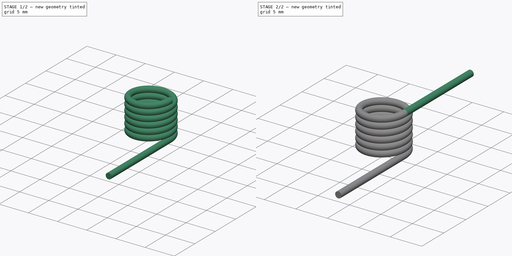
[diagram: build sequence overview — one tinted view per stage of 2, left to right]
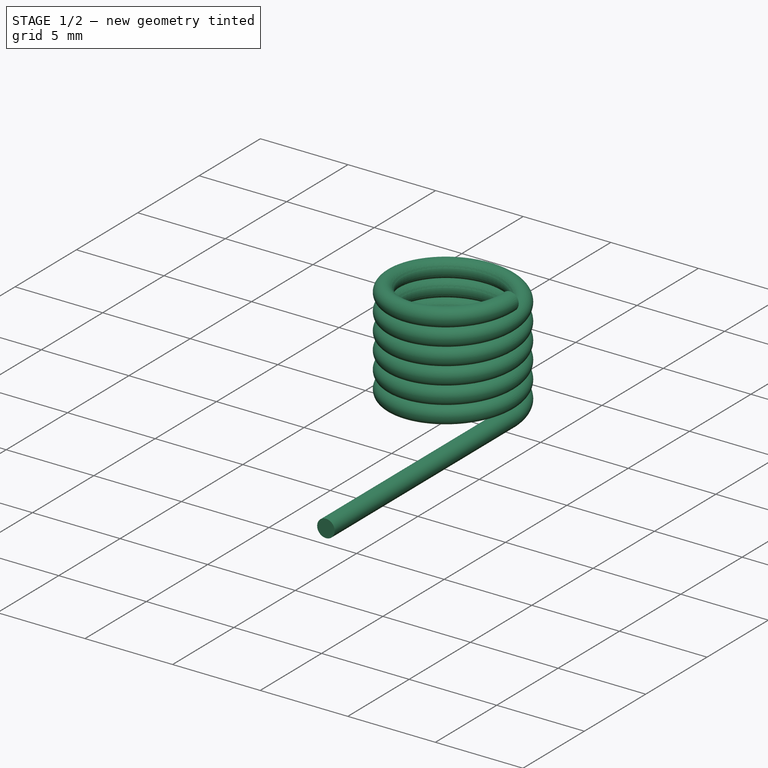
[diagram: stage 1 of 2 — iso view after this stage's code; geometry added in this stage tinted green]
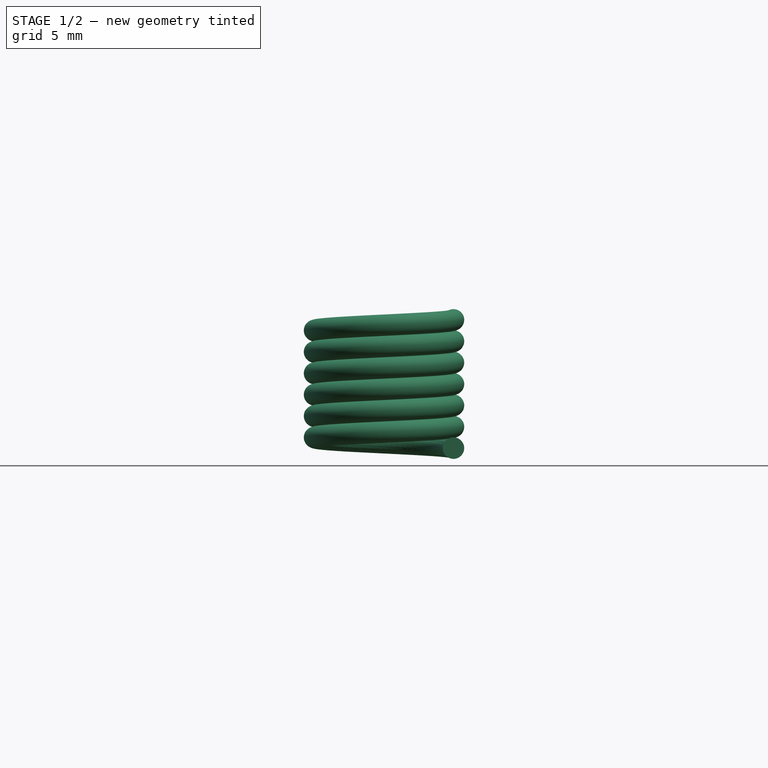
[diagram: stage 1 of 2 — front view after this stage's code; geometry added in this stage tinted green]
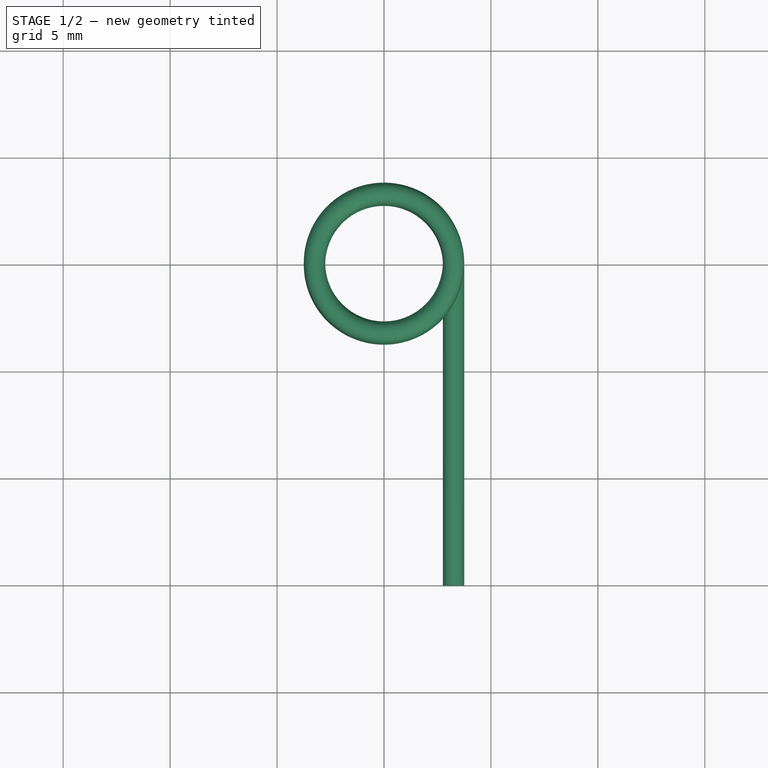
[diagram: stage 1 of 2 — top view after this stage's code; geometry added in this stage tinted green]
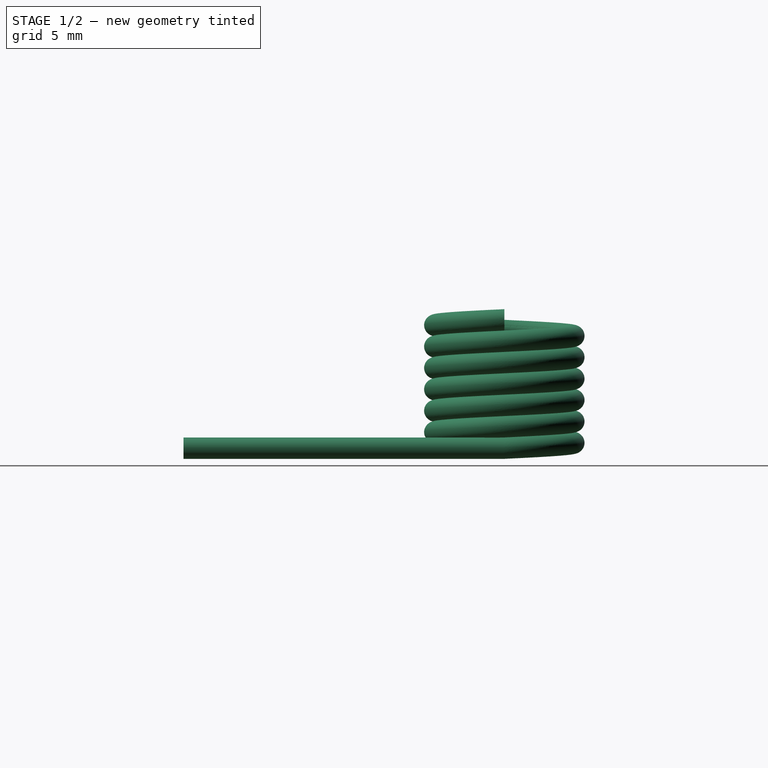
[diagram: stage 1 of 2 — right view after this stage's code; geometry added in this stage tinted green]
FCSTD DOCUMENT  (FreeCAD 0.18R14555 (Git shallow))
Label: spring
License: All rights reserved
LicenseURL: http://en.wikipedia.org/wiki/All_rights_reserved
objects: Drawing::FeatureViewPart×4, Drawing::FeatureViewPython×4, Sketcher::SketchObject×3, PartDesign::Pad×2, Part::Helix×1, PartDesign::FeatureBase×1, PartDesign::SubtractivePipe×1, PartDesign::Body×1, Drawing::FeaturePage×1
note: 12 computed .brp shape members not serialized (recipe doc carries the construction recipe); baked Part::Feature solids carry a one-line shape summary decoded from their .brp

FEATURE [Part::Helix] Helix
  Angle = 0
  AttacherType = Attacher::AttachEngine3D
  Height = 6
  LocalCoord = 0
  Pitch = 1
  Radius = 3.25
  Style = 1
FEATURE [PartDesign::FeatureBase] BaseFeature
  BaseFeature = -> Helix
FEATURE [Sketcher::SketchObject] Sketch
  MapMode = 5
  Placement = pos=(0,0,0) rot=(1,0,0;1.5708rad)
  Support = -> [XZ_Plane]
  sketch-geometry (1):
    g0: Circle CenterX=3.25 CenterY=0 CenterZ=0 NormalX=0 NormalY=0 NormalZ=1 AngleXU=0 Radius=0.5
  constraints (3):
    c: PointOnObject(g0,g-1)
    c: Diameter(g0) = 1
    c: DistanceX(g-1,g0) = 3.25
FEATURE [PartDesign::SubtractivePipe] SubtractivePipe
  AuxilleryCurvelinear = true
  AuxillerySpineTangent = false
  BaseFeature = -> BaseFeature
  Binormal = (0,0,0)
  Mode = 2
  Profile = -> Sketch
  Spine = -> BaseFeature
  SpineTangent = false
  Transformation = 0
  Transition = 0
FEATURE [Sketcher::SketchObject] Sketch001
  MapMode = 5
  Placement = pos=(0,0,0) rot=(1,0,0;1.5708rad)
  Support = -> [SubtractivePipe]
  sketch-geometry (1):
    g0: Circle CenterX=3.25 CenterY=0 CenterZ=0 NormalX=0 NormalY=0 NormalZ=1 AngleXU=0 Radius=0.5
  constraints (3):
    c: PointOnObject(g0,g-1)
    c: Diameter(g0) = 1
    c: DistanceX(g-1,g0) = 3.25
FEATURE [PartDesign::Pad] Pad
  BaseFeature = -> SubtractivePipe
  Length = 15
  Length2 = 100
  Profile = -> Sketch001
  Type = 0
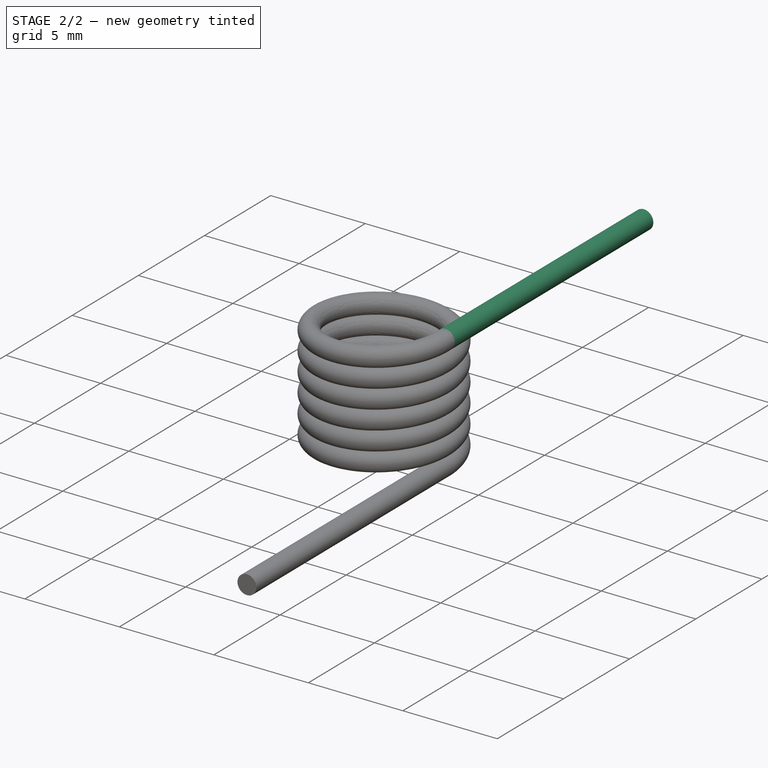
[diagram: stage 2 of 2 — iso view after this stage's code; geometry added in this stage tinted green]
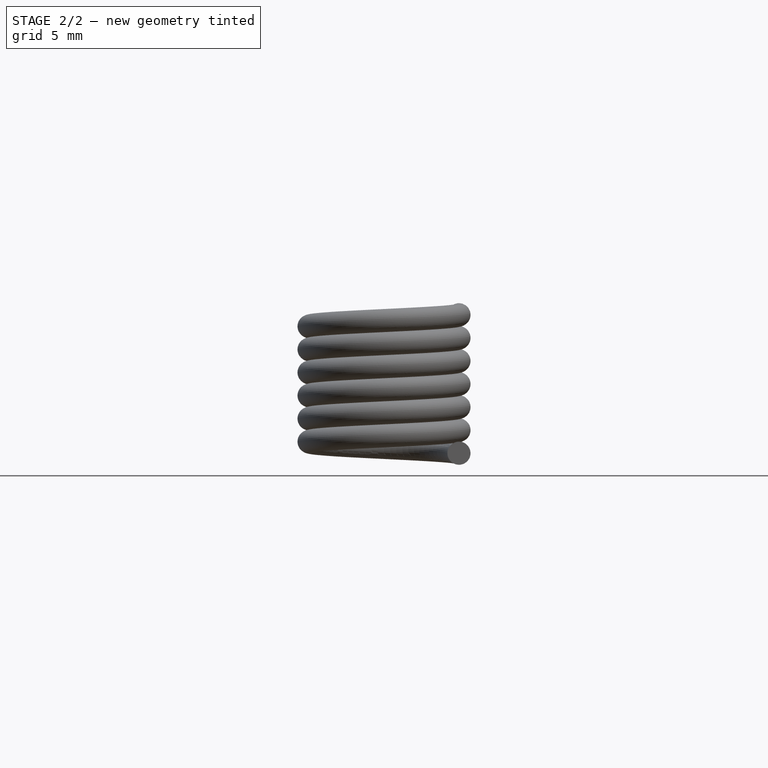
[diagram: stage 2 of 2 — front view after this stage's code; geometry added in this stage tinted green]
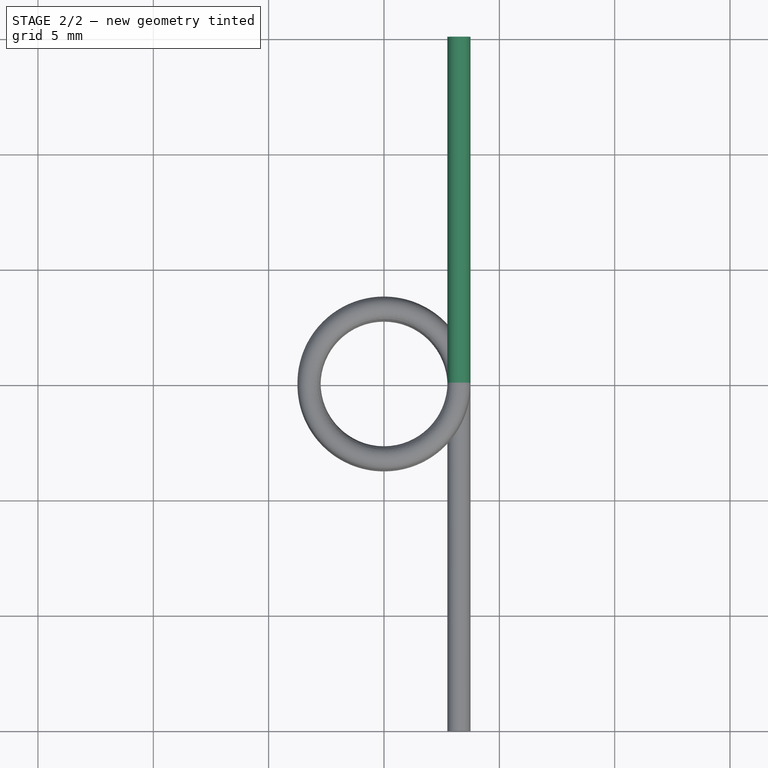
[diagram: stage 2 of 2 — top view after this stage's code; geometry added in this stage tinted green]
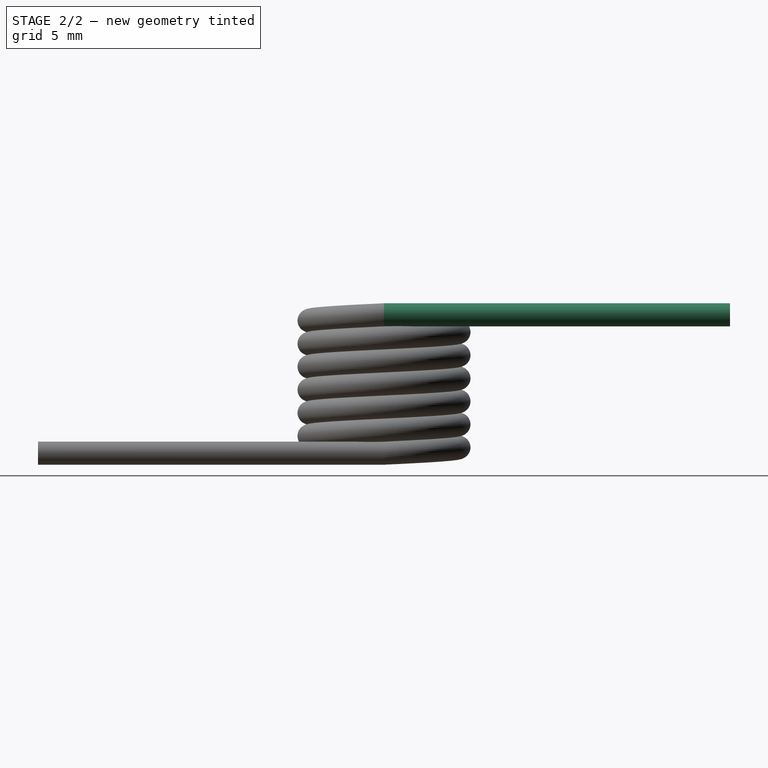
[diagram: stage 2 of 2 — right view after this stage's code; geometry added in this stage tinted green]
FEATURE [Sketcher::SketchObject] Sketch002
  MapMode = 5
  Placement = pos=(3.4862e-12,3.36606e-06,0) rot=(0,0.707107,0.707107;3.14159rad)
  Support = -> [Pad]
  sketch-geometry (1):
    g0: Circle CenterX=-3.25 CenterY=6 CenterZ=0 NormalX=0 NormalY=0 NormalZ=1 AngleXU=0 Radius=0.5
  constraints (3):
    c: Diameter(g0) = 1
    c: DistanceX(g0,g-1) = 3.25
    c: DistanceY(g-1,g0) = 6
FEATURE [PartDesign::Pad] Pad001
  BaseFeature = -> Pad
  Length = 15
  Length2 = 0.1
  Profile = -> Sketch002
  Type = 4
FEATURE [PartDesign::Body] Body
  BaseFeature = -> Helix
  Group = -> [BaseFeature,Sketch,SubtractivePipe,Sketch001,Pad,Sketch002,Pad001]
  Origin = -> Origin
  Tip = -> Pad001
FEATURE [Drawing::FeatureViewPart] Ortho  label="Ortho_0_0"
  Direction = (0,0,-1)
  HiddenWidth = 0.15
  LineWidth = 0.35
  Rotation = -90
  Scale = 2
  ShowHiddenLines = false
  ShowSmoothLines = false
  Source = -> Pad001
  Tolerance = 0.05
  ViewResult = <blob: 8019 chars omitted>
  Visible = false
  X = 148.5
  Y = 135.987
FEATURE [Drawing::FeatureViewPart] Ortho001  label="Ortho_0_1"
  Direction = (-1,0,0)
  HiddenWidth = 0.15
  LineWidth = 0.35
  Rotation = 90
  Scale = 2
  ShowHiddenLines = false
  ShowSmoothLines = false
  Source = -> Pad001
  Tolerance = 0.05
  ViewResult = <blob: 9168 chars omitted>
  Visible = false
  X = 148.5
  Y = 92.0016
FEATURE [Drawing::FeatureViewPython] dia001  # drawing view (typed FeaturePython)
  Rotation = 0
  ViewResult = <g>  <circle cx ="148.502260" cy ="135.982257" r="0.250000" stroke="none" fill="rgb(0,0,255)" /> \n<line x1="156.395856" y1="126.512437" x2="144.977418" y2="140.210955" style="stroke:rgb(0,0,255);stroke-width:0.50" />\n<polygon points="152.027103,131.753560 149.338113,133.417691 149.465967,134.826113 150.874390,134.698259" style="fill:rgb(0,0,255);stroke:rgb(0,0,255);stroke-width:0" />\n<polygon points="144.977418,140.210955 147.666408,138.546824 147.538553,137.138402 146.130131,137.266256" style="fill:rgb(0,0,255);stroke:rgb(0,0,255);stroke-width:0" />\n<line x1="156.395856" y1="126.512437" x2="168.206069" y2="126.512437" style="stroke:rgb(0,0,255);stroke-width:0.50" />\n<text x="162.300962" y="124.512437" font-family="inherit" font-size="3.6" fill="rgb(0,0,255)" text-anchor="middle" transform="rotate(0.000000 162.300962,124.512437)" >Ø5.5</text> </g>
  Visible = false
  X = 0
  Y = 0
  arrowL1 = 3
  arrowL2 = 1
  arrowW = 2
  arrow_scheme = 0
  autoPlaceOffset = 2
  autoPlaceText = true
  centerPointDia = 0.5
  click1_x = 156.396
  click1_y = 126.512
  click2_x = 168.206
  click2_y = 126.691
  click3_x = 168.206
  click3_y = 126.691
  comma_decimal_place = false
  lineColor = rgb(0,0,255)
  strokeWidth = 0.5
  textFormat_circular = Ø%(value)3.1f
  textRenderer_color = rgb(0,0,255)
  textRenderer_family = inherit
  textRenderer_size = 3.6
  unit_custom_scale = 1
  unit_scheme = 0
FEATURE [Drawing::FeatureViewPython] dim001  # drawing view (typed FeaturePython)
  Rotation = 0
  ViewResult = <g> \n  <line x1="118.500837" y1="145.487040" x2="118.505235" y2="155.989917" style="stroke:rgb(0,0,255);stroke-width:0.50" />\n<line x1="178.500837" y1="145.461920" x2="178.505235" y2="155.964797" style="stroke:rgb(0,0,255);stroke-width:0.50" />\n<line x1="118.504816" y1="154.989918" x2="178.504816" y2="154.964798" style="stroke:rgb(0,0,255);stroke-width:0.50" /> \n  <polygon points="178.504816,154.964798 175.504397,153.966054 174.504816,154.966472 175.505235,155.966053" style="fill:rgb(0,0,255);stroke:rgb(0,0,255);stroke-width:0" /><polygon points="118.504816,154.989918 121.505234,155.988661 122.504816,154.988243 121.504397,153.988662" style="fill:rgb(0,0,255);stroke:rgb(0,0,255);stroke-width:0" /> \n  <text x="148.503979" y="152.977358" font-family="inherit" font-size="3.6" fill="rgb(0,0,255)" text-anchor="middle" transform="rotate(-0.023988 148.503979,152.977358)" >30</text> </g>
  Visible = false
  X = 0
  Y = 0
  arrowL1 = 3
  arrowL2 = 1
  arrowW = 2
  arrow_scheme = 0
  autoPlaceOffset = 2
  autoPlaceText = true
  click1_x = 179.658
  click1_y = 154.964
  click2_x = 179.658
  click2_y = 154.964
  comma_decimal_place = false
  dimension_line_overshoot = 1
  gap_datum_points = 2
  halfDimension_linear = false
  lineColor = rgb(0,0,255)
  strokeWidth = 0.5
  textFormat_linear = %(value)3.3f
  textRenderer_color = rgb(0,0,255)
  textRenderer_family = inherit
  textRenderer_size = 3.6
  unit_custom_scale = 1
  unit_scheme = 0
FEATURE [Drawing::FeatureViewPython] dim002  # drawing view (typed FeaturePython)
  Rotation = 0
  ViewResult = <g> \n  <line x1="148.500000" y1="94.708710" x2="148.500000" y2="106.218264" style="stroke:rgb(0,0,255);stroke-width:0.50" />\n<line x1="178.500000" y1="94.976528" x2="178.500000" y2="106.218264" style="stroke:rgb(0,0,255);stroke-width:0.50" />\n<line x1="148.500000" y1="105.218264" x2="178.500000" y2="105.218264" style="stroke:rgb(0,0,255);stroke-width:0.50" /> \n  <polygon points="178.500000,105.218264 175.500000,104.218264 174.500000,105.218264 175.500000,106.218264" style="fill:rgb(0,0,255);stroke:rgb(0,0,255);stroke-width:0" /><polygon points="148.500000,105.218264 151.500000,106.218264 152.500000,105.218264 151.500000,104.218264" style="fill:rgb(0,0,255);stroke:rgb(0,0,255);stroke-width:0" /> \n  <text x="163.500000" y="103.218264" font-family="inherit" font-size="3.6" fill="rgb(0,0,255)" text-anchor="middle" transform="rotate(0.000000 163.500000,103.218264)" >15</text> </g>
  Visible = false
  X = 0
  Y = 0
  arrowL1 = 3
  arrowL2 = 1
  arrowW = 2
  arrow_scheme = 0
  autoPlaceOffset = 2
  autoPlaceText = true
  click1_x = 176.258
  click1_y = 105.218
  click2_x = 176.258
  click2_y = 105.218
  comma_decimal_place = false
  dimension_line_overshoot = 1
  gap_datum_points = 2
  halfDimension_linear = false
  lineColor = rgb(0,0,255)
  strokeWidth = 0.5
  textFormat_linear = %(value)3.3f
  textRenderer_color = rgb(0,0,255)
  textRenderer_family = inherit
  textRenderer_size = 3.6
  unit_custom_scale = 1
  unit_scheme = 0
FEATURE [Drawing::FeatureViewPython] dim003  # drawing view (typed FeaturePython)
  Rotation = 0
  ViewResult = <g> \n  <line x1="116.500000" y1="79.001600" x2="110.302314" y2="79.001600" style="stroke:rgb(0,0,255);stroke-width:0.50" />\n<line x1="116.500000" y1="81.001600" x2="110.302314" y2="81.001600" style="stroke:rgb(0,0,255);stroke-width:0.50" />\n<line x1="111.302314" y1="79.001600" x2="111.302314" y2="81.001600" style="stroke:rgb(0,0,255);stroke-width:0.50" /> \n  <polygon points="111.302314,81.001600 110.302314,84.001600 111.302314,85.001600 112.302314,84.001600" style="fill:rgb(0,0,255);stroke:rgb(0,0,255);stroke-width:0" /><polygon points="111.302314,79.001600 112.302314,76.001600 111.302314,75.001600 110.302314,76.001600" style="fill:rgb(0,0,255);stroke:rgb(0,0,255);stroke-width:0" /> \n  <text x="109.302314" y="80.001600" font-family="inherit" font-size="3.6" fill="rgb(0,0,255)" text-anchor="middle" transform="rotate(-90.000000 109.302314,80.001600)" >1</text> </g>
  Visible = false
  X = 0
  Y = 0
  arrowL1 = 3
  arrowL2 = 1
  arrowW = 2
  arrow_scheme = 0
  autoPlaceOffset = 2
  autoPlaceText = true
  click1_x = 111.302
  click1_y = 72.4718
  click2_x = 111.302
  click2_y = 72.4718
  comma_decimal_place = false
  dimension_line_overshoot = 1
  gap_datum_points = 2
  halfDimension_linear = false
  lineColor = rgb(0,0,255)
  strokeWidth = 0.5
  textFormat_linear = %(value)3.3f
  textRenderer_color = rgb(0,0,255)
  textRenderer_family = inherit
  textRenderer_size = 3.6
  unit_custom_scale = 1
  unit_scheme = 0
FEATURE [Drawing::FeatureViewPart] Ortho002  label="Ortho_0_002"
  Direction = (1,0,0)
  HiddenWidth = 0.15
  LineWidth = 0.35
  Rotation = -90
  Scale = 2
  ShowHiddenLines = false
  ShowSmoothLines = false
  Source = -> Pad001
  Tolerance = 0.05
  ViewResult = <blob: 7329 chars omitted>
  Visible = false
  X = 70
  Y = 141.949
FEATURE [Drawing::FeatureViewPart] Ortho003  label="Ortho_1_1"
  Direction = (-0.57735,-0.57735,0.57735)
  HiddenWidth = 0.15
  LineWidth = 0.35
  Rotation = 60
  Scale = 2
  ShowHiddenLines = false
  ShowSmoothLines = false
  Source = -> Pad001
  Tolerance = 0.05
  ViewResult = <blob: 5808 chars omitted>
  Visible = false
  X = 234.203
  Y = 27.539
FEATURE [Drawing::FeaturePage] Page
  EditableTexts = AUTHOR NAME | DRAWING TITLE | FreeCAD DRAWING | A4 | X / Y | SCALE | PN | DN | DD/MM/YYYY | REV A
  Group = -> [Ortho,Ortho001,dia001,dim001,dim002,dim003,Ortho002,Ortho003]
  Template = /app/freecad/data/Mod/Drawing/Templates/A4_Landscape_ISO7200.svg
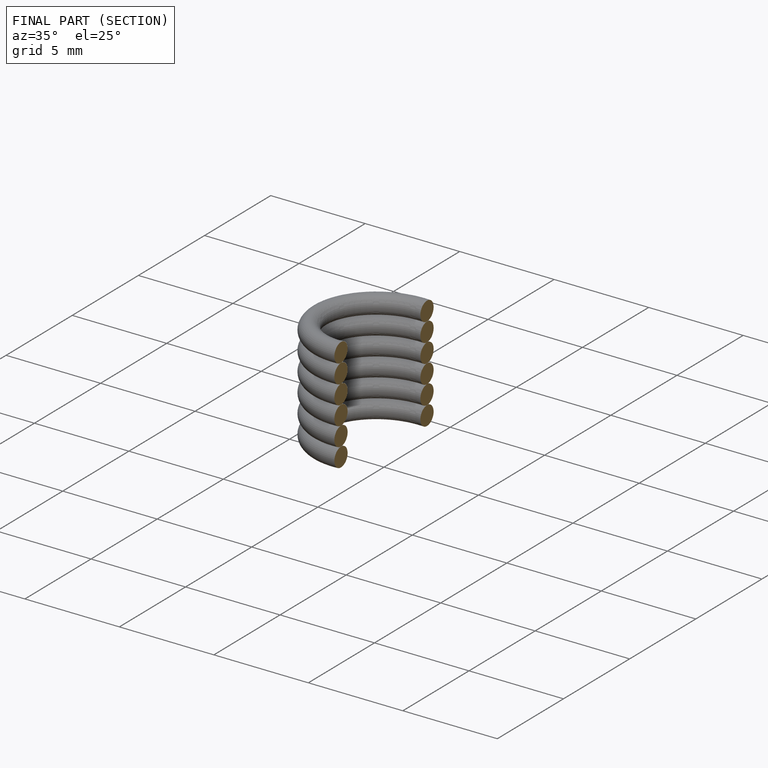
[diagram: finished part — half-section view (interior)]
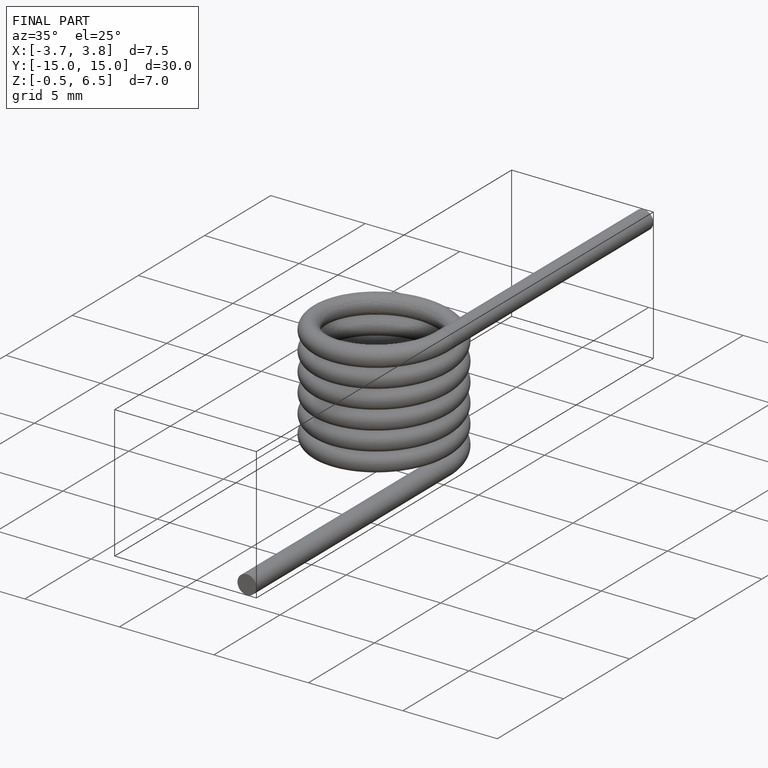
[diagram: finished part — iso view with bounding-box wireframe]
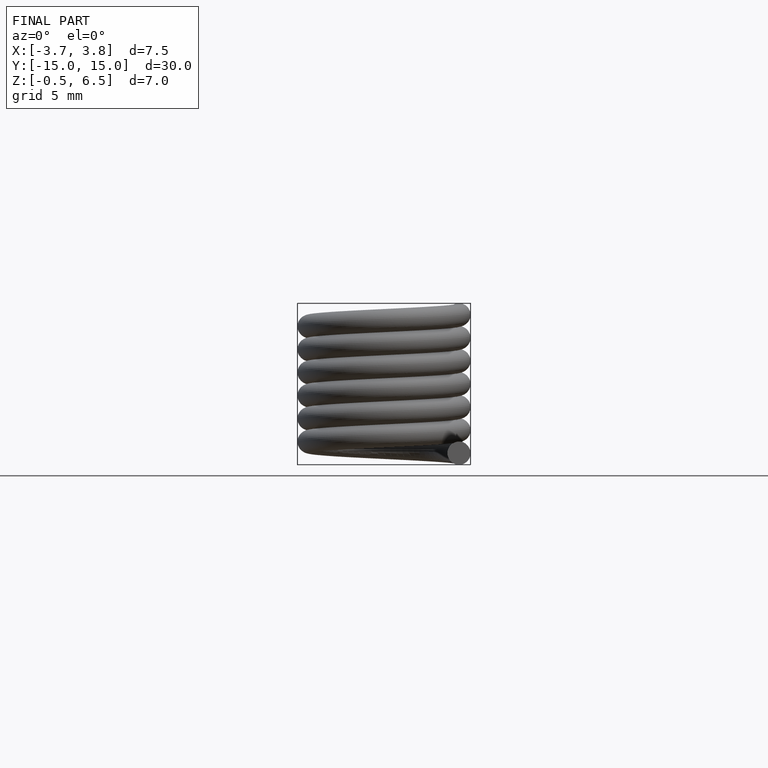
[diagram: finished part — front view with bounding-box wireframe]
